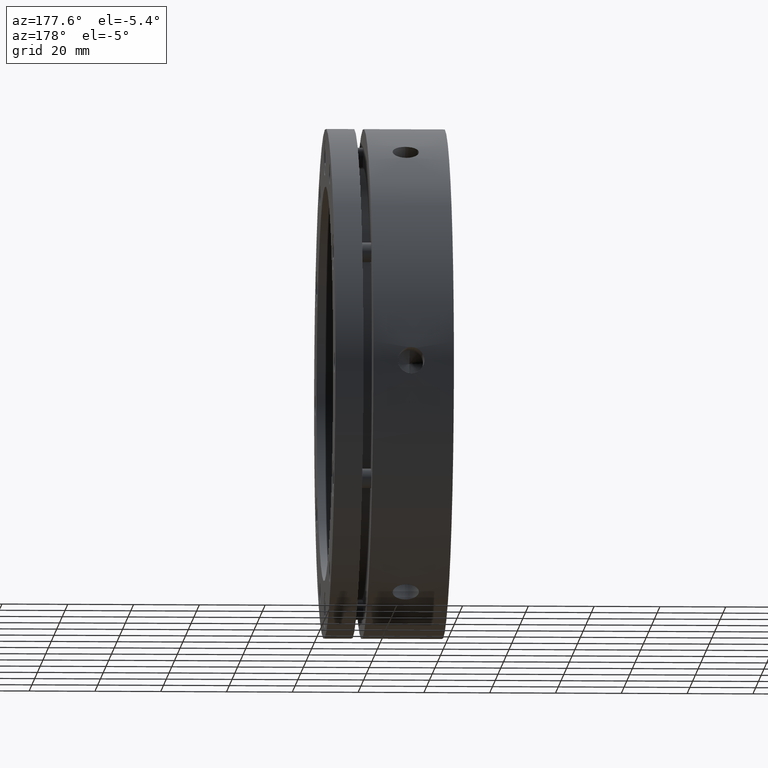
[diagram: clean part render]
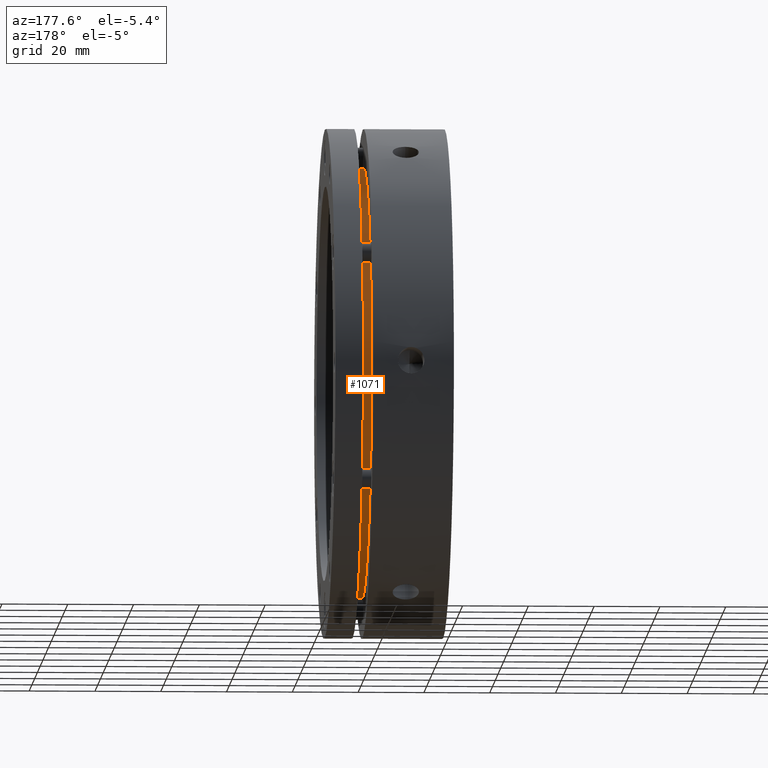
[diagram: same view with one face highlighted and labeled with its STEP entity id]
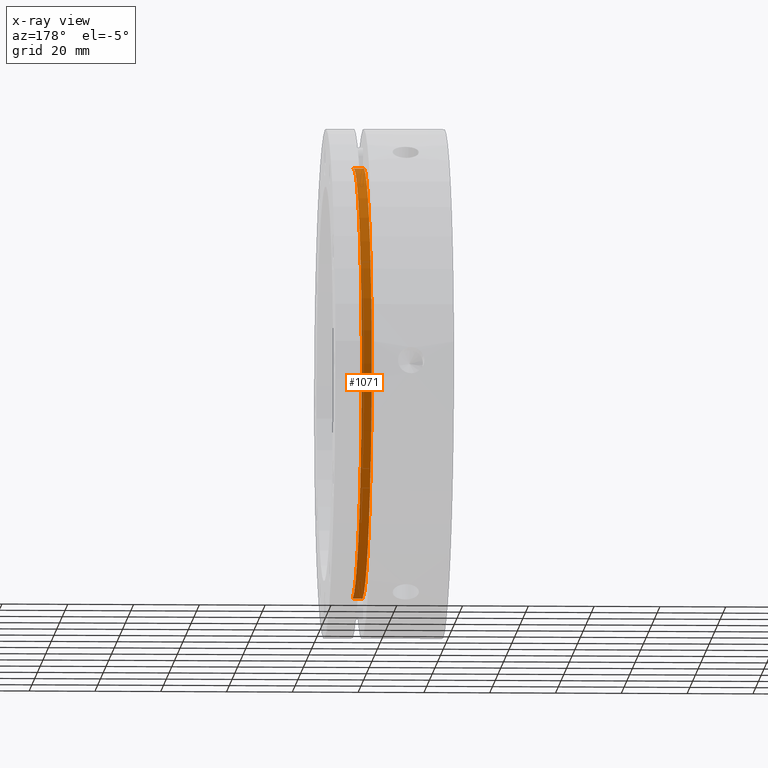
[diagram: x-ray of the same camera — body ghosted, the highlighted face saturated]
A machine part, auxiliary view. The second image highlights one B-rep face of the part: STEP entity #1071.
The next image is the same camera in x-ray: the body ghosted, the highlighted face saturated — about 2% of this face is hidden behind the body in this view.
In plain terms, the highlighted cylindrical surface (partial cylindrical patch) has radius 65.5 mm, axis along (-1, 0, 0).
Its self-contained STEP definition (entity closure, byte-faithful):
#131 = CIRCLE ( 'NONE', #3963, 65.50000000000000000 ) ;
#134 = VECTOR ( 'NONE', #823, 1000.000000000000000 ) ;
#135 = CIRCLE ( 'NONE', #3964, 65.50000000000000000 ) ;
#136 = VECTOR ( 'NONE', #822, 1000.000000000000000 ) ;
#139 = LINE ( 'NONE', #816, #134 ) ;
#142 = LINE ( 'NONE', #817, #136 ) ;
#520 = EDGE_CURVE ( 'NONE', #3749, #3741, #142, .T. ) ;
#521 = EDGE_CURVE ( 'NONE', #3725, #3665, #139, .T. ) ;
#523 = EDGE_CURVE ( 'NONE', #3741, #3665, #135, .T. ) ;
#524 = EDGE_CURVE ( 'NONE', #3725, #3749, #131, .T. ) ;
#816 = CARTESIAN_POINT ( 'NONE',  ( 25.99999999999998200, 0.0000000000000000000, 65.50000000000000000 ) ) ;
#817 = CARTESIAN_POINT ( 'NONE',  ( 25.99999999999998200, 8.021436534415164800E-015, -65.50000000000000000 ) ) ;
#822 = DIRECTION ( 'NONE',  ( -1.000000000000000000, 0.0000000000000000000, 0.0000000000000000000 ) ) ;
#823 = DIRECTION ( 'NONE',  ( -1.000000000000000000, 0.0000000000000000000, 0.0000000000000000000 ) ) ;
#827 = CARTESIAN_POINT ( 'NONE',  ( 24.49999999999998600, 0.0000000000000000000, 0.0000000000000000000 ) ) ;
#828 = DIRECTION ( 'NONE',  ( 1.000000000000000000, -0.0000000000000000000, -0.0000000000000000000 ) ) ;
#829 = DIRECTION ( 'NONE',  ( 0.0000000000000000000, 0.0000000000000000000, 1.000000000000000000 ) ) ;
#832 = CARTESIAN_POINT ( 'NONE',  ( 27.49999999999998200, 0.0000000000000000000, 0.0000000000000000000 ) ) ;
#833 = DIRECTION ( 'NONE',  ( -1.000000000000000000, 0.0000000000000000000, 0.0000000000000000000 ) ) ;
#834 = DIRECTION ( 'NONE',  ( 0.0000000000000000000, 0.0000000000000000000, 1.000000000000000000 ) ) ;
#1000 = DIRECTION ( 'NONE',  ( 0.0000000000000000000, 0.0000000000000000000, 1.000000000000000000 ) ) ;
#1002 = DIRECTION ( 'NONE',  ( -1.000000000000000000, 0.0000000000000000000, 0.0000000000000000000 ) ) ;
#1004 = CARTESIAN_POINT ( 'NONE',  ( 25.99999999999998200, 0.0000000000000000000, 0.0000000000000000000 ) ) ;
#1071 = ADVANCED_FACE ( 'NONE', ( #4774 ), #4790, .T. ) ;
#2871 = CARTESIAN_POINT ( 'NONE',  ( 24.49999999999998600, 0.0000000000000000000, 65.50000000000000000 ) ) ;
#2931 = CARTESIAN_POINT ( 'NONE',  ( 27.49999999999998200, 0.0000000000000000000, 65.50000000000000000 ) ) ;
#3050 = EDGE_LOOP ( 'NONE', ( #3553, #3554, #3555, #3559 ) ) ;
#3553 = ORIENTED_EDGE ( 'NONE', *, *, #524, .T. ) ;
#3554 = ORIENTED_EDGE ( 'NONE', *, *, #520, .T. ) ;
#3555 = ORIENTED_EDGE ( 'NONE', *, *, #523, .T. ) ;
#3559 = ORIENTED_EDGE ( 'NONE', *, *, #521, .F. ) ;
#3665 = VERTEX_POINT ( 'NONE', #2871 ) ;
#3725 = VERTEX_POINT ( 'NONE', #2931 ) ;
#3741 = VERTEX_POINT ( 'NONE', #4378 ) ;
#3749 = VERTEX_POINT ( 'NONE', #4386 ) ;
#3906 = AXIS2_PLACEMENT_3D ( 'NONE', #1004, #1002, #1000 ) ;
#3963 = AXIS2_PLACEMENT_3D ( 'NONE', #832, #833, #834 ) ;
#3964 = AXIS2_PLACEMENT_3D ( 'NONE', #827, #828, #829 ) ;
#4378 = CARTESIAN_POINT ( 'NONE',  ( 24.49999999999998600, 8.021436534415164800E-015, -65.50000000000000000 ) ) ;
#4386 = CARTESIAN_POINT ( 'NONE',  ( 27.49999999999998200, 8.021436534415164800E-015, -65.50000000000000000 ) ) ;
#4774 = FACE_OUTER_BOUND ( 'NONE', #3050, .T. ) ;
#4790 = CYLINDRICAL_SURFACE ( 'NONE', #3906, 65.50000000000000000 ) ;